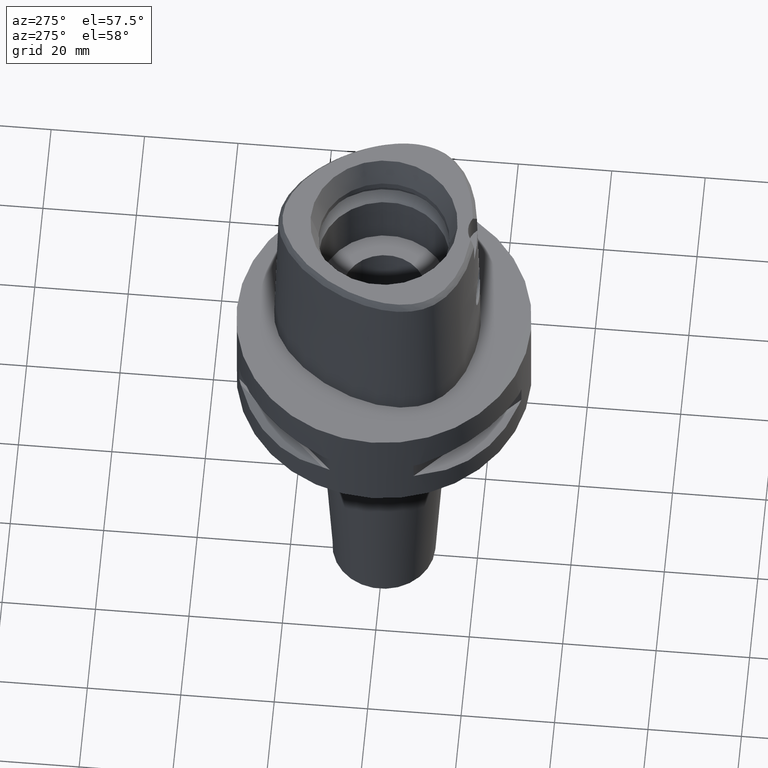
[diagram: clean part render]
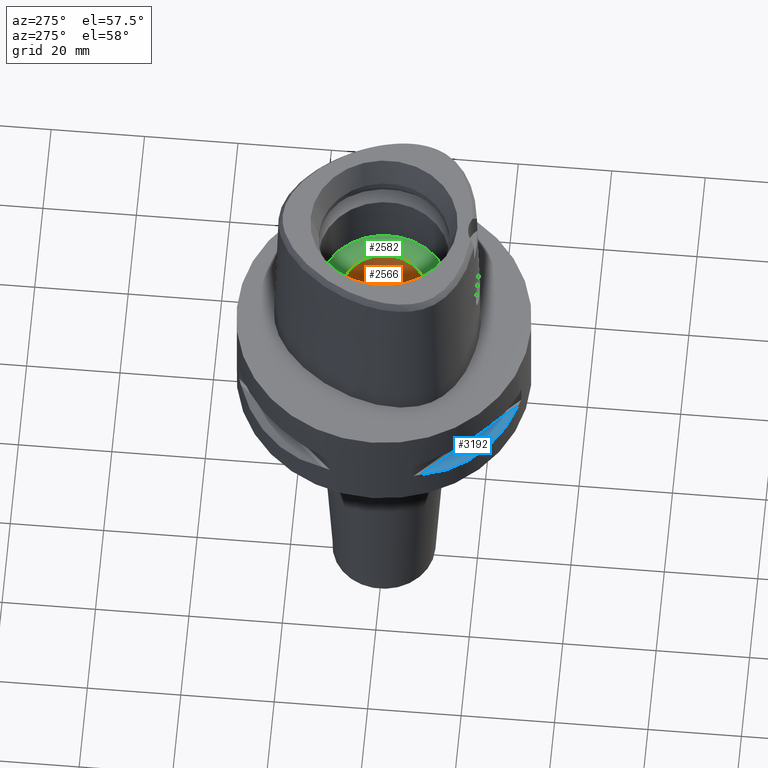
[diagram: same view with three faces highlighted in distinct colors, each labeled with its STEP entity id]
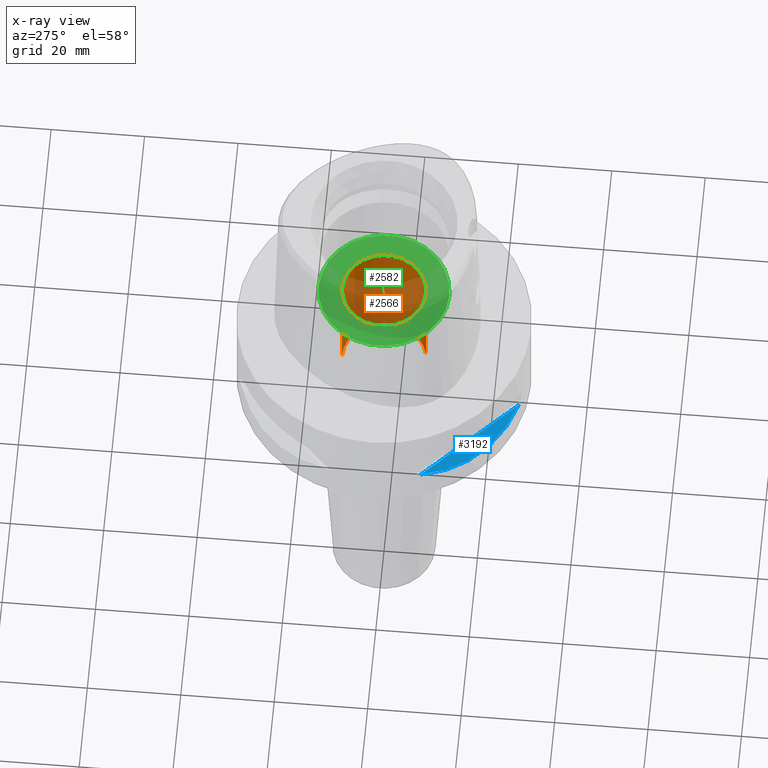
[diagram: x-ray of the same camera — body ghosted, the three highlighted faces saturated]
A machine part, auxiliary view with three faces highlighted in distinct colors.
The next image is the same camera in x-ray (body ghosted, the three faces saturated) — at least one of them is partly hidden behind the body in this view.
Their STEP definitions:

[orange] entity #2566 — the highlighted cylindrical surface (partial cylindrical patch) has radius 9 mm, axis along (0, 0, -1).
#684=CARTESIAN_POINT('',(0.E0,0.E0,-1.6E1));
#685=DIRECTION('',(0.E0,0.E0,-1.E0));
#686=DIRECTION('',(0.E0,1.E0,0.E0));
#687=AXIS2_PLACEMENT_3D('',#684,#685,#686);
#708=DIRECTION('',(0.E0,0.E0,-1.E0));
#709=VECTOR('',#708,2.7E1);
#710=CARTESIAN_POINT('',(0.E0,-9.E0,1.1E1));
#711=LINE('',#710,#709);
#715=DIRECTION('',(0.E0,0.E0,1.E0));
#716=VECTOR('',#715,2.7E1);
#717=CARTESIAN_POINT('',(0.E0,9.E0,-1.6E1));
#718=LINE('',#717,#716);
#746=CARTESIAN_POINT('',(0.E0,0.E0,1.1E1));
#747=DIRECTION('',(0.E0,0.E0,1.E0));
#748=DIRECTION('',(0.E0,-1.E0,0.E0));
#749=AXIS2_PLACEMENT_3D('',#746,#747,#748);
#1528=CARTESIAN_POINT('',(0.E0,-9.E0,-1.6E1));
#1529=CARTESIAN_POINT('',(0.E0,9.E0,-1.6E1));
#1530=VERTEX_POINT('',#1528);
#1531=VERTEX_POINT('',#1529);
#1532=CARTESIAN_POINT('',(0.E0,9.E0,1.1E1));
#1533=VERTEX_POINT('',#1532);
#1534=CARTESIAN_POINT('',(0.E0,-9.E0,1.1E1));
#1535=VERTEX_POINT('',#1534);
#2554=CARTESIAN_POINT('',(0.E0,0.E0,3.99E1));
#2555=DIRECTION('',(0.E0,0.E0,-1.E0));
#2556=DIRECTION('',(0.E0,-1.E0,0.E0));
#2557=AXIS2_PLACEMENT_3D('',#2554,#2555,#2556);
#2558=CYLINDRICAL_SURFACE('',#2557,9.E0);
#2559=ORIENTED_EDGE('',*,*,#2547,.T.);
#2560=ORIENTED_EDGE('',*,*,#2530,.F.);
#2561=ORIENTED_EDGE('',*,*,#2544,.T.);
#2563=ORIENTED_EDGE('',*,*,#2562,.F.);
#2564=EDGE_LOOP('',(#2559,#2560,#2561,#2563));
#2565=FACE_OUTER_BOUND('',#2564,.F.);
#688=CIRCLE('',#687,9.E0);
#750=CIRCLE('',#749,9.E0);
#2530=EDGE_CURVE('',#1531,#1530,#688,.T.);
#2544=EDGE_CURVE('',#1531,#1533,#718,.T.);
#2547=EDGE_CURVE('',#1535,#1530,#711,.T.);
#2562=EDGE_CURVE('',#1535,#1533,#750,.T.);
#2566=ADVANCED_FACE('',(#2565),#2558,.F.);

[blue] entity #3192 — the highlighted planar face has unit normal (0.3536, 0.3536, -0.866).
#433=CARTESIAN_POINT('',(-2.971690375018E1,-1.044775724750E1,-1.405E1));
#434=CARTESIAN_POINT('',(-2.888151197365E1,-1.282388988809E1,
-1.467900482380E1));
#435=CARTESIAN_POINT('',(-2.674739463903E1,-1.711282138769E1,
-1.555870402293E1));
#436=CARTESIAN_POINT('',(-2.244574140438E1,-2.244574140438E1,
-1.597971692371E1));
#437=CARTESIAN_POINT('',(-1.711282138769E1,-2.674739463903E1,
-1.555870402293E1));
#438=CARTESIAN_POINT('',(-1.282388988809E1,-2.888151197365E1,
-1.467900482380E1));
#439=CARTESIAN_POINT('',(-1.044775724750E1,-2.971690375018E1,-1.405E1));
#1407=DIRECTION('',(7.071067811865E-1,-7.071067811865E-1,0.E0));
#1408=VECTOR('',#1407,2.725068831944E1);
#1409=CARTESIAN_POINT('',(-2.971690375018E1,-1.044775724750E1,-1.405E1));
#1410=LINE('',#1409,#1408);
#1467=CARTESIAN_POINT('',(-2.971690375018E1,-1.044775724750E1,-1.405E1));
#1468=VERTEX_POINT('',#1467);
#1469=VERTEX_POINT('',#439);
#3183=CARTESIAN_POINT('',(-2.404660969175E0,-3.776000002850E1,-1.405E1));
#3184=DIRECTION('',(3.535533905933E-1,3.535533905933E-1,-8.660254037844E-1));
#3185=DIRECTION('',(-6.123724356958E-1,-6.123724356958E-1,-5.E-1));
#3186=AXIS2_PLACEMENT_3D('',#3183,#3184,#3185);
#3187=PLANE('',#3186);
#3188=ORIENTED_EDGE('',*,*,#2303,.F.);
#3189=ORIENTED_EDGE('',*,*,#3176,.T.);
#3190=EDGE_LOOP('',(#3188,#3189));
#3191=FACE_OUTER_BOUND('',#3190,.F.);
#440=B_SPLINE_CURVE_WITH_KNOTS('',3,(#433,#434,#435,#436,#437,#438,#439),
.UNSPECIFIED.,.F.,.F.,(4,1,1,1,4),(0.E0,2.5E-1,5.E-1,7.5E-1,1.E0),
.UNSPECIFIED.);
#2303=EDGE_CURVE('',#1468,#1469,#440,.T.);
#3176=EDGE_CURVE('',#1468,#1469,#1410,.T.);
#3192=ADVANCED_FACE('',(#3191),#3187,.F.);

[green] entity #2582 — the highlighted planar face has unit normal (0, 0, -1).
#722=CARTESIAN_POINT('',(0.E0,0.E0,1.1E1));
#723=DIRECTION('',(0.E0,0.E0,-1.E0));
#724=DIRECTION('',(0.E0,1.E0,0.E0));
#725=AXIS2_PLACEMENT_3D('',#722,#723,#724);
#730=CARTESIAN_POINT('',(0.E0,0.E0,1.1E1));
#731=DIRECTION('',(0.E0,0.E0,-1.E0));
#732=DIRECTION('',(0.E0,-1.E0,0.E0));
#733=AXIS2_PLACEMENT_3D('',#730,#731,#732);
#738=CARTESIAN_POINT('',(0.E0,0.E0,1.1E1));
#739=DIRECTION('',(0.E0,0.E0,1.E0));
#740=DIRECTION('',(0.E0,1.E0,0.E0));
#741=AXIS2_PLACEMENT_3D('',#738,#739,#740);
#746=CARTESIAN_POINT('',(0.E0,0.E0,1.1E1));
#747=DIRECTION('',(0.E0,0.E0,1.E0));
#748=DIRECTION('',(0.E0,-1.E0,0.E0));
#749=AXIS2_PLACEMENT_3D('',#746,#747,#748);
#1532=CARTESIAN_POINT('',(0.E0,9.E0,1.1E1));
#1533=VERTEX_POINT('',#1532);
#1534=CARTESIAN_POINT('',(0.E0,-9.E0,1.1E1));
#1535=VERTEX_POINT('',#1534);
#1536=CARTESIAN_POINT('',(0.E0,1.4E1,1.1E1));
#1537=CARTESIAN_POINT('',(0.E0,-1.4E1,1.1E1));
#1538=VERTEX_POINT('',#1536);
#1539=VERTEX_POINT('',#1537);
#2567=CARTESIAN_POINT('',(0.E0,0.E0,1.1E1));
#2568=DIRECTION('',(0.E0,0.E0,-1.E0));
#2569=DIRECTION('',(0.E0,-1.E0,0.E0));
#2570=AXIS2_PLACEMENT_3D('',#2567,#2568,#2569);
#2571=PLANE('',#2570);
#2573=ORIENTED_EDGE('',*,*,#2572,.T.);
#2575=ORIENTED_EDGE('',*,*,#2574,.T.);
#2576=EDGE_LOOP('',(#2573,#2575));
#2577=FACE_OUTER_BOUND('',#2576,.F.);
#2578=ORIENTED_EDGE('',*,*,#2549,.T.);
#2579=ORIENTED_EDGE('',*,*,#2562,.T.);
#2580=EDGE_LOOP('',(#2578,#2579));
#2581=FACE_BOUND('',#2580,.F.);
#726=CIRCLE('',#725,1.4E1);
#734=CIRCLE('',#733,1.4E1);
#742=CIRCLE('',#741,9.E0);
#750=CIRCLE('',#749,9.E0);
#2549=EDGE_CURVE('',#1533,#1535,#742,.T.);
#2562=EDGE_CURVE('',#1535,#1533,#750,.T.);
#2572=EDGE_CURVE('',#1538,#1539,#726,.T.);
#2574=EDGE_CURVE('',#1539,#1538,#734,.T.);
#2582=ADVANCED_FACE('',(#2577,#2581),#2571,.F.);